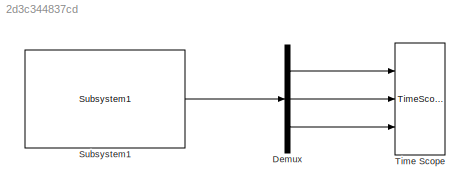
MODEL slx_2d3c344837cd
KIND model
BLOCK [Demux] Demux
  DisplayOption = bar
  Outputs = 3
  Ports = [1, 3]
BLOCK [Reference] Subsystem1  REF=BeagleBoneBlackCom/Subsystem1
  FunctionWithSeparateData = off
  GeneratePreprocessorConditionals = off
  Ports = [0, 1]
  ShowPortLabels = FromPortIcon
  SourceBlock = BeagleBoneBlackCom/Subsystem1
  SystemSampleTime = -1
BLOCK [TimeScope] Time Scope
  DefaultConfigurationName = spbscopes.TimeScopeBlockCfg
  NumInputPorts = 3
  Ports = [3]
  ScopeSpecificationString = spbscopes.TimeScopeBlockCfg('CurrentConfiguration', extmgr.ConfigurationSet(extmgr.Configuration('Core','General UI',true),extmgr.Configuration('Core','Source UI',true),extmgr.Configuration('Sources','WiredSimulink',true),extmgr.Configuration('Visuals','Time Domain',true,'DisplayLayoutDimensions',[3 1],'DisplayPropertyDefaults',struct('YLabelReal','Amplitude','AxesColor',[0 0 0],'AxesTickColor',[0...<+2689ch>
  UserDataPersistent = on
LINE Demux:1 -> Time Scope:1
LINE Demux:2 -> Time Scope:2
LINE Demux:3 -> Time Scope:3
LINE Subsystem1:1 -> Demux:1
